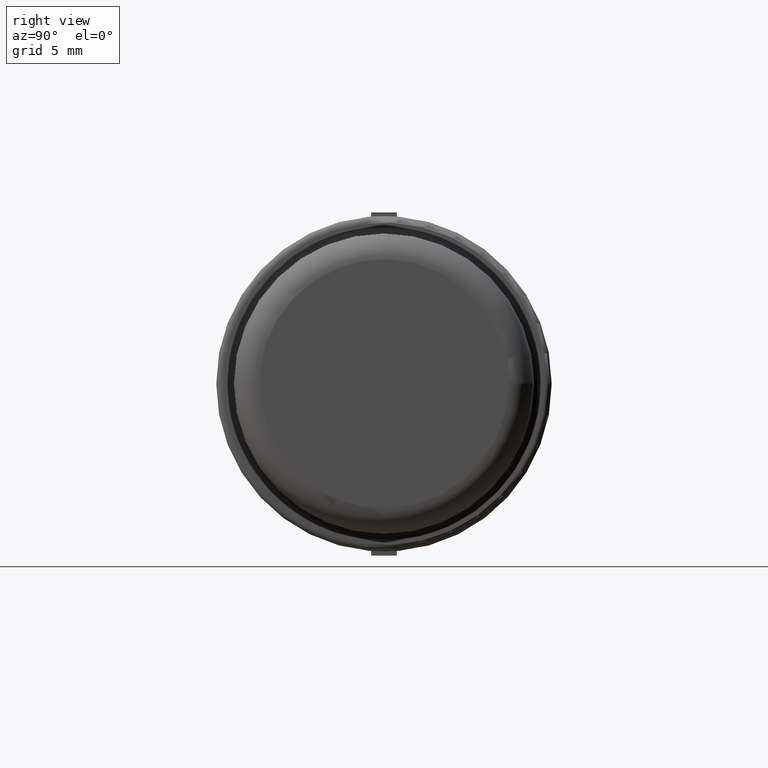
[diagram: clean part render]
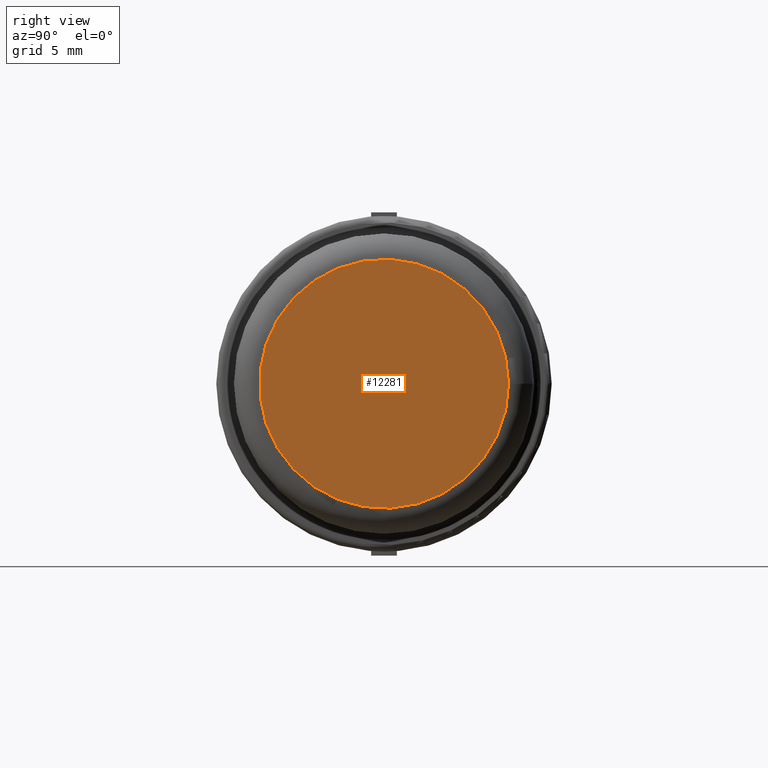
[diagram: same view with one face highlighted and labeled with its STEP entity id]
A machine part, right view. The second image highlights one B-rep face of the part: STEP entity #12281.
In plain terms, the highlighted planar face has unit normal (1, 0, 0).
Its self-contained STEP definition (entity closure, byte-faithful):
#12258=CARTESIAN_POINT('',(23.346818619294684,11.793928645136344,0.0));
#12259=VERTEX_POINT('',#12258);
#12260=CARTESIAN_POINT('',(23.346818619294687,2.093928645136343,0.0));
#12261=DIRECTION('',(1.0,1.813423E-013,0.0));
#12262=DIRECTION('',(-1.813423E-013,1.0,0.0));
#12263=AXIS2_PLACEMENT_3D('',#12260,#12261,#12262);
#12264=CIRCLE('',#12263,9.700000000000003);
#12265=EDGE_CURVE('',#12259,#12259,#12264,.T.);
#12273=CARTESIAN_POINT('',(23.346818619294687,6.943928645136344,0.0));
#12274=DIRECTION('',(1.0,0.0,0.0));
#12275=DIRECTION('',(0.0,0.0,-1.0));
#12276=AXIS2_PLACEMENT_3D('',#12273,#12274,#12275);
#12277=PLANE('',#12276);
#12278=ORIENTED_EDGE('',*,*,#12265,.T.);
#12279=EDGE_LOOP('',(#12278));
#12280=FACE_OUTER_BOUND('',#12279,.T.);
#12281=ADVANCED_FACE('',(#12280),#12277,.T.);